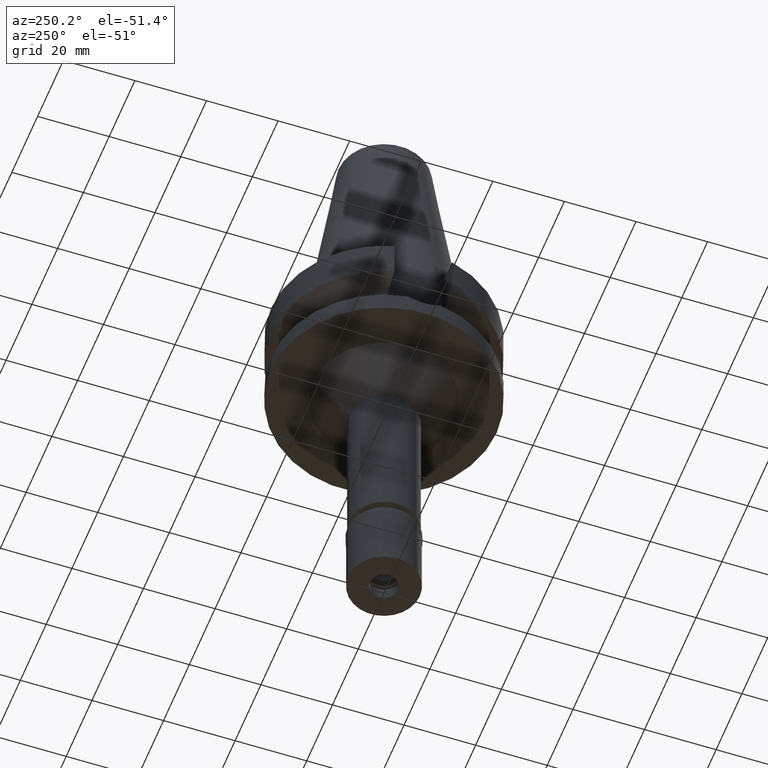
[diagram: clean part render]
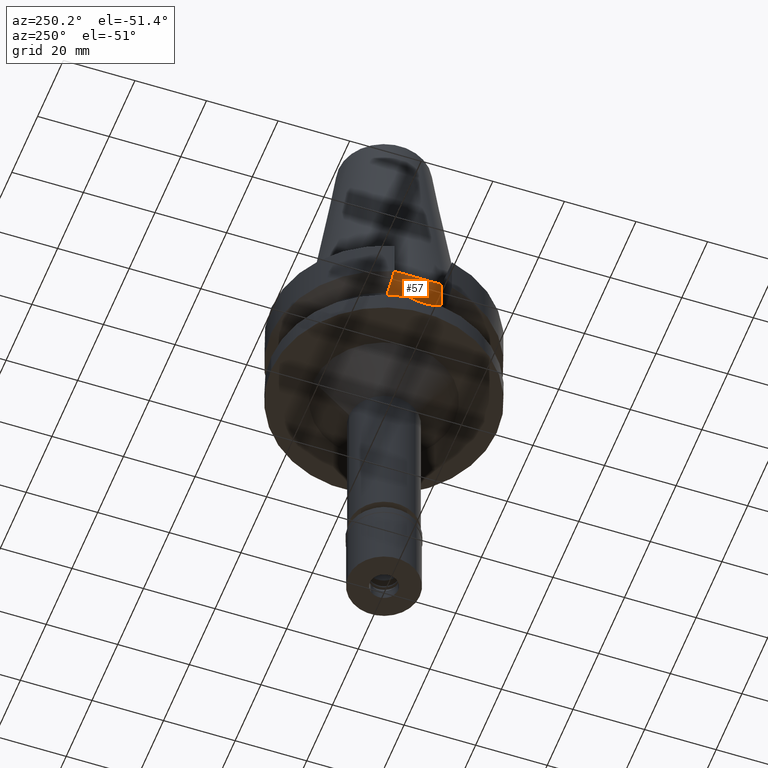
[diagram: same view with one face highlighted and labeled with its STEP entity id]
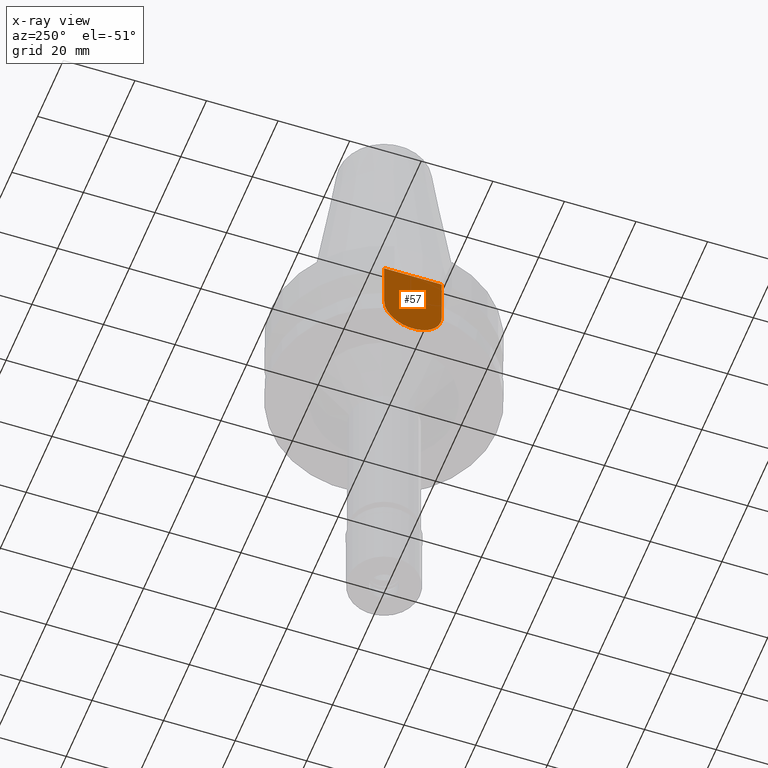
[diagram: x-ray of the same camera — body ghosted, the highlighted face saturated]
A machine part, auxiliary view. The second image highlights one B-rep face of the part: STEP entity #57.
The next image is the same camera in x-ray: the body ghosted, the highlighted face saturated — about 0% of this face is hidden behind the body in this view.
In plain terms, the highlighted planar face has unit normal (-1, 0, 0).
Its self-contained STEP definition (entity closure, byte-faithful):
#57 = ADVANCED_FACE ( 'NONE', ( #1254 ), #1565, .T. ) ;
#66 = VECTOR ( 'NONE', #1983, 1000.000000000000000 ) ;
#202 = VERTEX_POINT ( 'NONE', #943 ) ;
#224 = CARTESIAN_POINT ( 'NONE',  ( -22.50000000000000000, -8.050000000000000711, -14.94999999999999929 ) ) ;
#288 = DIRECTION ( 'NONE',  ( 0.0000000000000000000, -1.000000000000000000, 0.0000000000000000000 ) ) ;
#295 = CARTESIAN_POINT ( 'NONE',  ( -22.50000000000000000, 0.0000000000000000000, 0.0000000000000000000 ) ) ;
#339 = EDGE_CURVE ( 'NONE', #1670, #2187, #1753, .T. ) ;
#464 = ORIENTED_EDGE ( 'NONE', *, *, #1300, .F. ) ;
#492 = EDGE_CURVE ( 'NONE', #2543, #202, #1751, .T. ) ;
#718 = CARTESIAN_POINT ( 'NONE',  ( -22.50000000000000000, -8.050000000000000711, -1.000000000000000000 ) ) ;
#736 = AXIS2_PLACEMENT_3D ( 'NONE', #295, #1073, #2037 ) ;
#926 = LINE ( 'NONE', #1905, #1238 ) ;
#943 = CARTESIAN_POINT ( 'NONE',  ( -22.50000000000000000, 8.050000000000000711, -1.000000000000000000 ) ) ;
#984 = ORIENTED_EDGE ( 'NONE', *, *, #492, .T. ) ;
#1073 = DIRECTION ( 'NONE',  ( -1.000000000000000000, 0.0000000000000000000, 0.0000000000000000000 ) ) ;
#1112 = ORIENTED_EDGE ( 'NONE', *, *, #1678, .F. ) ;
#1235 = VECTOR ( 'NONE', #2433, 1000.000000000000000 ) ;
#1238 = VECTOR ( 'NONE', #1453, 1000.000000000000000 ) ;
#1254 = FACE_OUTER_BOUND ( 'NONE', #1960, .T. ) ;
#1300 = EDGE_CURVE ( 'NONE', #2187, #202, #1474, .T. ) ;
#1453 = DIRECTION ( 'NONE',  ( 0.0000000000000000000, 0.0000000000000000000, -1.000000000000000000 ) ) ;
#1474 = LINE ( 'NONE', #2887, #1235 ) ;
#1502 = CARTESIAN_POINT ( 'NONE',  ( -22.50000000000000000, 0.0000000000000000000, -14.94999999999999929 ) ) ;
#1565 = PLANE ( 'NONE',  #736 ) ;
#1670 = VERTEX_POINT ( 'NONE', #224 ) ;
#1678 = EDGE_CURVE ( 'NONE', #2543, #1670, #926, .T. ) ;
#1751 = LINE ( 'NONE', #2712, #66 ) ;
#1753 = CIRCLE ( 'NONE', #2500, 8.050000000000000711 ) ;
#1905 = CARTESIAN_POINT ( 'NONE',  ( -22.50000000000000000, -8.050000000000000711, -1.000000000000000000 ) ) ;
#1960 = EDGE_LOOP ( 'NONE', ( #464, #2206, #1112, #984 ) ) ;
#1983 = DIRECTION ( 'NONE',  ( 0.0000000000000000000, 1.000000000000000000, 0.0000000000000000000 ) ) ;
#2037 = DIRECTION ( 'NONE',  ( 0.0000000000000000000, 0.0000000000000000000, 1.000000000000000000 ) ) ;
#2187 = VERTEX_POINT ( 'NONE', #3086 ) ;
#2206 = ORIENTED_EDGE ( 'NONE', *, *, #339, .F. ) ;
#2433 = DIRECTION ( 'NONE',  ( 0.0000000000000000000, 0.0000000000000000000, 1.000000000000000000 ) ) ;
#2500 = AXIS2_PLACEMENT_3D ( 'NONE', #1502, #2882, #288 ) ;
#2543 = VERTEX_POINT ( 'NONE', #718 ) ;
#2712 = CARTESIAN_POINT ( 'NONE',  ( -22.50000000000000000, -8.050000000000000711, -1.000000000000000000 ) ) ;
#2882 = DIRECTION ( 'NONE',  ( 1.000000000000000000, 0.0000000000000000000, 0.0000000000000000000 ) ) ;
#2887 = CARTESIAN_POINT ( 'NONE',  ( -22.50000000000000000, 8.050000000000000711, -14.94999999999999929 ) ) ;
#3086 = CARTESIAN_POINT ( 'NONE',  ( -22.50000000000000000, 8.050000000000000711, -14.94999999999999929 ) ) ;